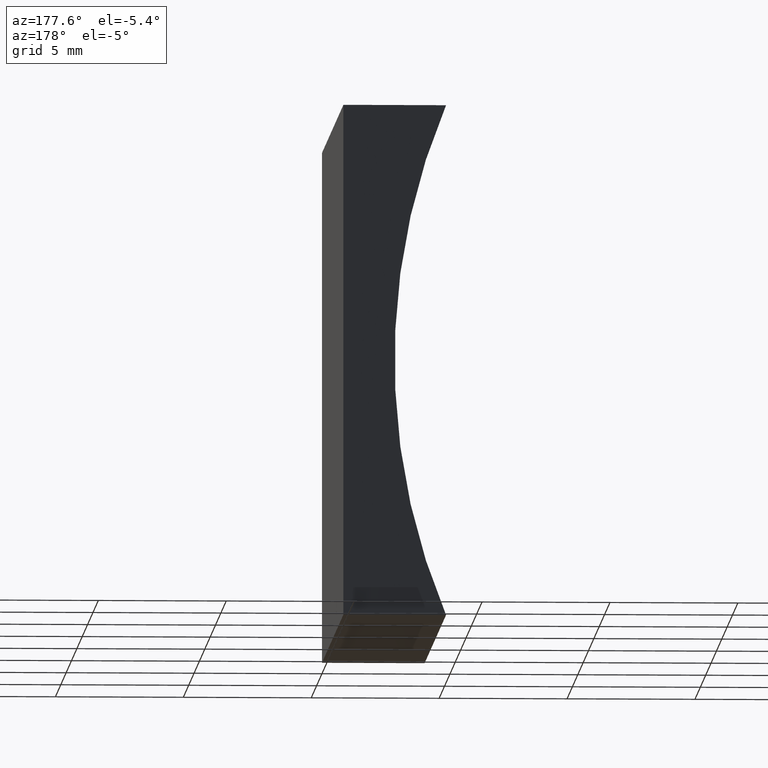
[diagram: clean part render]
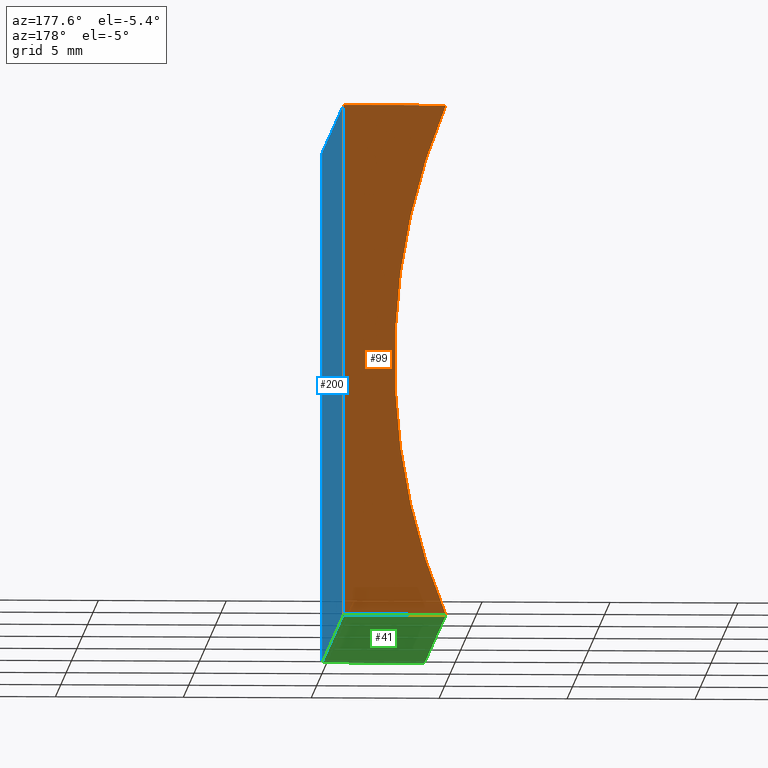
[diagram: same view with three faces highlighted in distinct colors, each labeled with its STEP entity id]
A machine part, auxiliary view with three faces highlighted in distinct colors.
Their STEP definitions:

[orange] entity #99 — the highlighted planar face has unit normal (0, 1, 0).
#12 = LINE ( 'NONE', #113, #170 ) ;
#26 = DIRECTION ( 'NONE',  ( -0.0000000000000000000, -1.000000000000000000, -0.0000000000000000000 ) ) ;
#27 = ORIENTED_EDGE ( 'NONE', *, *, #132, .T. ) ;
#35 = PLANE ( 'NONE',  #112 ) ;
#40 = ORIENTED_EDGE ( 'NONE', *, *, #155, .T. ) ;
#50 = CARTESIAN_POINT ( 'NONE',  ( 0.0000000000000000000, 20.00000000000000000, 0.0000000000000000000 ) ) ;
#55 = VERTEX_POINT ( 'NONE', #156 ) ;
#59 = EDGE_CURVE ( 'NONE', #176, #135, #141, .T. ) ;
#62 = DIRECTION ( 'NONE',  ( 0.0000000000000000000, 0.0000000000000000000, 1.000000000000000000 ) ) ;
#65 = ORIENTED_EDGE ( 'NONE', *, *, #59, .T. ) ;
#76 = CARTESIAN_POINT ( 'NONE',  ( -4.012581935117213800, 20.00000000000000000, 5.204170427930421300E-015 ) ) ;
#77 = DIRECTION ( 'NONE',  ( 0.0000000000000000000, -0.0000000000000000000, 1.000000000000000000 ) ) ;
#87 = ORIENTED_EDGE ( 'NONE', *, *, #98, .T. ) ;
#98 = EDGE_CURVE ( 'NONE', #55, #126, #103, .T. ) ;
#99 = ADVANCED_FACE ( 'NONE', ( #196 ), #35, .T. ) ;
#103 = LINE ( 'NONE', #50, #185 ) ;
#112 = AXIS2_PLACEMENT_3D ( 'NONE', #195, #152, #77 ) ;
#113 = CARTESIAN_POINT ( 'NONE',  ( 0.0000000000000000000, 20.00000000000000000, 0.0000000000000000000 ) ) ;
#123 = DIRECTION ( 'NONE',  ( 1.000000000000000000, -0.0000000000000000000, 8.646420205378973500E-016 ) ) ;
#126 = VERTEX_POINT ( 'NONE', #76 ) ;
#132 = EDGE_CURVE ( 'NONE', #135, #55, #12, .T. ) ;
#134 = VECTOR ( 'NONE', #123, 1000.000000000000000 ) ;
#135 = VERTEX_POINT ( 'NONE', #175 ) ;
#141 = LINE ( 'NONE', #143, #134 ) ;
#143 = CARTESIAN_POINT ( 'NONE',  ( 1.224646799147353300E-015, 20.00000000000000000, 20.00000000000000000 ) ) ;
#144 = DIRECTION ( 'NONE',  ( -6.123233995736766000E-017, -0.0000000000000000000, -1.000000000000000000 ) ) ;
#146 = EDGE_LOOP ( 'NONE', ( #87, #40, #65, #27 ) ) ;
#152 = DIRECTION ( 'NONE',  ( 0.0000000000000000000, 1.000000000000000000, 0.0000000000000000000 ) ) ;
#155 = EDGE_CURVE ( 'NONE', #126, #176, #161, .T. ) ;
#156 = CARTESIAN_POINT ( 'NONE',  ( 0.0000000000000000000, 20.00000000000000000, 0.0000000000000000000 ) ) ;
#161 = CIRCLE ( 'NONE', #201, 25.85000000000000500 ) ;
#167 = CARTESIAN_POINT ( 'NONE',  ( -4.012581935117213000, 20.00000000000000000, 19.99999999999999600 ) ) ;
#170 = VECTOR ( 'NONE', #144, 1000.000000000000000 ) ;
#175 = CARTESIAN_POINT ( 'NONE',  ( 1.224646799147353300E-015, 20.00000000000000000, 20.00000000000000000 ) ) ;
#176 = VERTEX_POINT ( 'NONE', #167 ) ;
#183 = CARTESIAN_POINT ( 'NONE',  ( -27.85000000000000100, 20.00000000000000000, 10.00000000000000200 ) ) ;
#185 = VECTOR ( 'NONE', #186, 1000.000000000000000 ) ;
#186 = DIRECTION ( 'NONE',  ( -1.000000000000000000, 0.0000000000000000000, 8.646420205378970500E-016 ) ) ;
#195 = CARTESIAN_POINT ( 'NONE',  ( -27.85000000000000100, 20.00000000000000000, 10.00000000000000200 ) ) ;
#196 = FACE_OUTER_BOUND ( 'NONE', #146, .T. ) ;
#201 = AXIS2_PLACEMENT_3D ( 'NONE', #183, #26, #62 ) ;

[blue] entity #200 — the highlighted planar face has unit normal (-1, 0, 0).
#11 = CARTESIAN_POINT ( 'NONE',  ( 0.0000000000000000000, 0.0000000000000000000, 0.0000000000000000000 ) ) ;
#12 = LINE ( 'NONE', #113, #170 ) ;
#20 = DIRECTION ( 'NONE',  ( -0.0000000000000000000, -1.000000000000000000, -0.0000000000000000000 ) ) ;
#30 = EDGE_CURVE ( 'NONE', #107, #70, #124, .T. ) ;
#42 = ORIENTED_EDGE ( 'NONE', *, *, #108, .F. ) ;
#46 = CARTESIAN_POINT ( 'NONE',  ( 0.0000000000000000000, 20.00000000000000000, 0.0000000000000000000 ) ) ;
#52 = AXIS2_PLACEMENT_3D ( 'NONE', #46, #97, #64 ) ;
#55 = VERTEX_POINT ( 'NONE', #156 ) ;
#61 = ORIENTED_EDGE ( 'NONE', *, *, #132, .F. ) ;
#64 = DIRECTION ( 'NONE',  ( 6.123233995736766000E-017, 0.0000000000000000000, 1.000000000000000000 ) ) ;
#66 = CARTESIAN_POINT ( 'NONE',  ( 1.224646799147353300E-015, 0.0000000000000000000, 20.00000000000000000 ) ) ;
#68 = DIRECTION ( 'NONE',  ( -6.123233995736766000E-017, -0.0000000000000000000, -1.000000000000000000 ) ) ;
#70 = VERTEX_POINT ( 'NONE', #75 ) ;
#72 = DIRECTION ( 'NONE',  ( -0.0000000000000000000, -1.000000000000000000, -0.0000000000000000000 ) ) ;
#75 = CARTESIAN_POINT ( 'NONE',  ( 0.0000000000000000000, 0.0000000000000000000, 0.0000000000000000000 ) ) ;
#86 = EDGE_CURVE ( 'NONE', #135, #107, #193, .T. ) ;
#97 = DIRECTION ( 'NONE',  ( -1.000000000000000000, 0.0000000000000000000, 6.123233995736766000E-017 ) ) ;
#107 = VERTEX_POINT ( 'NONE', #66 ) ;
#108 = EDGE_CURVE ( 'NONE', #55, #70, #142, .T. ) ;
#113 = CARTESIAN_POINT ( 'NONE',  ( 0.0000000000000000000, 20.00000000000000000, 0.0000000000000000000 ) ) ;
#117 = VECTOR ( 'NONE', #68, 1000.000000000000000 ) ;
#124 = LINE ( 'NONE', #11, #117 ) ;
#125 = ORIENTED_EDGE ( 'NONE', *, *, #86, .T. ) ;
#131 = VECTOR ( 'NONE', #72, 1000.000000000000000 ) ;
#132 = EDGE_CURVE ( 'NONE', #135, #55, #12, .T. ) ;
#135 = VERTEX_POINT ( 'NONE', #175 ) ;
#138 = ORIENTED_EDGE ( 'NONE', *, *, #30, .T. ) ;
#142 = LINE ( 'NONE', #178, #131 ) ;
#144 = DIRECTION ( 'NONE',  ( -6.123233995736766000E-017, -0.0000000000000000000, -1.000000000000000000 ) ) ;
#153 = PLANE ( 'NONE',  #52 ) ;
#156 = CARTESIAN_POINT ( 'NONE',  ( 0.0000000000000000000, 20.00000000000000000, 0.0000000000000000000 ) ) ;
#158 = FACE_OUTER_BOUND ( 'NONE', #168, .T. ) ;
#163 = VECTOR ( 'NONE', #20, 1000.000000000000000 ) ;
#168 = EDGE_LOOP ( 'NONE', ( #138, #42, #61, #125 ) ) ;
#170 = VECTOR ( 'NONE', #144, 1000.000000000000000 ) ;
#175 = CARTESIAN_POINT ( 'NONE',  ( 1.224646799147353300E-015, 20.00000000000000000, 20.00000000000000000 ) ) ;
#178 = CARTESIAN_POINT ( 'NONE',  ( 0.0000000000000000000, 20.00000000000000000, 0.0000000000000000000 ) ) ;
#193 = LINE ( 'NONE', #202, #163 ) ;
#200 = ADVANCED_FACE ( 'NONE', ( #158 ), #153, .F. ) ;
#202 = CARTESIAN_POINT ( 'NONE',  ( 1.224646799147353300E-015, 20.00000000000000000, 20.00000000000000000 ) ) ;

[green] entity #41 — the highlighted planar face has unit normal (0, -0, 1).
#5 = PLANE ( 'NONE',  #119 ) ;
#13 = EDGE_CURVE ( 'NONE', #70, #88, #45, .T. ) ;
#14 = VECTOR ( 'NONE', #194, 1000.000000000000000 ) ;
#18 = CARTESIAN_POINT ( 'NONE',  ( 0.0000000000000000000, 20.00000000000000000, 0.0000000000000000000 ) ) ;
#22 = LINE ( 'NONE', #79, #157 ) ;
#23 = DIRECTION ( 'NONE',  ( -0.0000000000000000000, -1.000000000000000000, -0.0000000000000000000 ) ) ;
#31 = CARTESIAN_POINT ( 'NONE',  ( -4.012581935117213800, 0.0000000000000000000, 5.204170427930421300E-015 ) ) ;
#37 = EDGE_LOOP ( 'NONE', ( #173, #171, #121, #81 ) ) ;
#41 = ADVANCED_FACE ( 'NONE', ( #110 ), #5, .F. ) ;
#45 = LINE ( 'NONE', #78, #14 ) ;
#50 = CARTESIAN_POINT ( 'NONE',  ( 0.0000000000000000000, 20.00000000000000000, 0.0000000000000000000 ) ) ;
#55 = VERTEX_POINT ( 'NONE', #156 ) ;
#70 = VERTEX_POINT ( 'NONE', #75 ) ;
#72 = DIRECTION ( 'NONE',  ( -0.0000000000000000000, -1.000000000000000000, -0.0000000000000000000 ) ) ;
#75 = CARTESIAN_POINT ( 'NONE',  ( 0.0000000000000000000, 0.0000000000000000000, 0.0000000000000000000 ) ) ;
#76 = CARTESIAN_POINT ( 'NONE',  ( -4.012581935117213800, 20.00000000000000000, 5.204170427930421300E-015 ) ) ;
#78 = CARTESIAN_POINT ( 'NONE',  ( 0.0000000000000000000, 0.0000000000000000000, 0.0000000000000000000 ) ) ;
#79 = CARTESIAN_POINT ( 'NONE',  ( -4.012581935117213800, 20.00000000000000000, 5.204170427930421300E-015 ) ) ;
#81 = ORIENTED_EDGE ( 'NONE', *, *, #108, .T. ) ;
#88 = VERTEX_POINT ( 'NONE', #31 ) ;
#98 = EDGE_CURVE ( 'NONE', #55, #126, #103, .T. ) ;
#103 = LINE ( 'NONE', #50, #185 ) ;
#108 = EDGE_CURVE ( 'NONE', #55, #70, #142, .T. ) ;
#110 = FACE_OUTER_BOUND ( 'NONE', #37, .T. ) ;
#119 = AXIS2_PLACEMENT_3D ( 'NONE', #18, #189, #140 ) ;
#121 = ORIENTED_EDGE ( 'NONE', *, *, #98, .F. ) ;
#122 = EDGE_CURVE ( 'NONE', #126, #88, #22, .T. ) ;
#126 = VERTEX_POINT ( 'NONE', #76 ) ;
#131 = VECTOR ( 'NONE', #72, 1000.000000000000000 ) ;
#140 = DIRECTION ( 'NONE',  ( 1.000000000000000000, 0.0000000000000000000, -8.646420205378970500E-016 ) ) ;
#142 = LINE ( 'NONE', #178, #131 ) ;
#156 = CARTESIAN_POINT ( 'NONE',  ( 0.0000000000000000000, 20.00000000000000000, 0.0000000000000000000 ) ) ;
#157 = VECTOR ( 'NONE', #23, 1000.000000000000000 ) ;
#171 = ORIENTED_EDGE ( 'NONE', *, *, #122, .F. ) ;
#173 = ORIENTED_EDGE ( 'NONE', *, *, #13, .T. ) ;
#178 = CARTESIAN_POINT ( 'NONE',  ( 0.0000000000000000000, 20.00000000000000000, 0.0000000000000000000 ) ) ;
#185 = VECTOR ( 'NONE', #186, 1000.000000000000000 ) ;
#186 = DIRECTION ( 'NONE',  ( -1.000000000000000000, 0.0000000000000000000, 8.646420205378970500E-016 ) ) ;
#189 = DIRECTION ( 'NONE',  ( 8.646420205378970500E-016, -0.0000000000000000000, 1.000000000000000000 ) ) ;
#194 = DIRECTION ( 'NONE',  ( -1.000000000000000000, 0.0000000000000000000, 8.646420205378970500E-016 ) ) ;